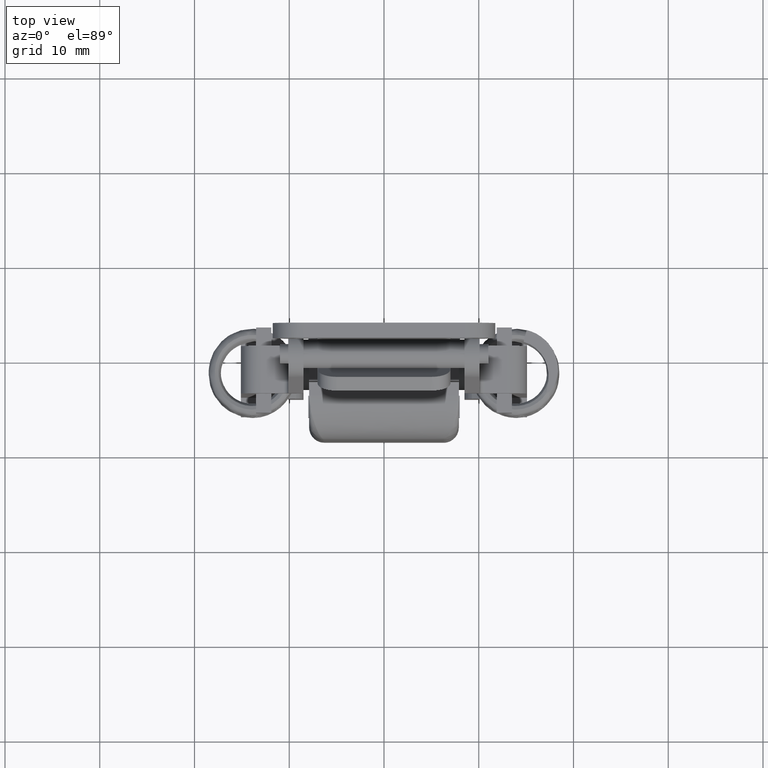
[diagram: clean part render]
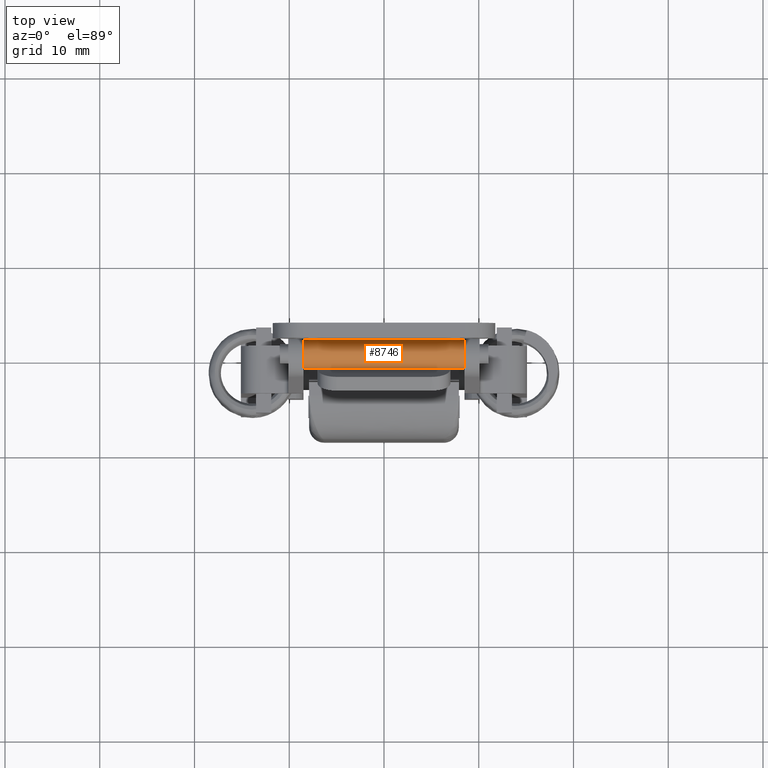
[diagram: same view with one face highlighted and labeled with its STEP entity id]
A machine part, top view. The second image highlights one B-rep face of the part: STEP entity #8746.
In plain terms, the highlighted face is a freeform B-spline surface patch.
Its self-contained STEP definition (entity closure, byte-faithful):
#8644=CARTESIAN_POINT('',(1.489514289545384,8.925000000000004,-0.177051351985123));
#8645=CARTESIAN_POINT('',(1.494581423172793,8.925000000000001,-0.134422092956955));
#8646=CARTESIAN_POINT('',(1.497202197632684,8.925000000000003,-0.091572809302278));
#8647=CARTESIAN_POINT('',(1.588775006934962,8.925000000000003,1.405629388330407));
#8648=CARTESIAN_POINT('',(0.091572809302278,8.925000000000003,1.497202197632685));
#8649=CARTESIAN_POINT('',(-1.405629388330406,8.925000000000003,1.588775006934964));
#8650=CARTESIAN_POINT('',(-1.497202197632684,8.925000000000003,0.091572809302279));
#8651=CARTESIAN_POINT('',(1.489514289545384,-8.935625000000004,-0.177051351985123));
#8652=CARTESIAN_POINT('',(1.494581423172793,-8.935625000000002,-0.134422092956955));
#8653=CARTESIAN_POINT('',(1.497202197632684,-8.935625000000002,-0.091572809302278));
#8654=CARTESIAN_POINT('',(1.588775006934962,-8.935625000000002,1.405629388330407));
#8655=CARTESIAN_POINT('',(0.091572809302278,-8.935625000000002,1.497202197632685));
#8656=CARTESIAN_POINT('',(-1.405629388330406,-8.935625000000002,1.588775006934964));
#8657=CARTESIAN_POINT('',(-1.497202197632684,-8.935625000000002,0.091572809302279));
#8665=(BOUNDED_SURFACE()B_SPLINE_SURFACE(2,1,((#8644,#8651),(#8645,#8652),(#8646,#8653),(#8647,#8654),(#8648,#8655),(#8649,#8656),(#8650,#8657)),.UNSPECIFIED.,.F.,.F.,.U.)B_SPLINE_SURFACE_WITH_KNOTS((3,2,2,3),(2,2),(3.078760800517997,3.141592653589793,4.712388980384690,6.283185307179586),(0.0,17.860625000000010),.UNSPECIFIED.)GEOMETRIC_REPRESENTATION_ITEM()RATIONAL_B_SPLINE_SURFACE(((0.977505800795127,0.977505800795127),(0.988284271247462,0.988284271247462),(1.0,1.0),(0.707106781186548,0.707106781186548),(1.0,1.0),(0.707106781186548,0.707106781186548),(1.0,1.0)))REPRESENTATION_ITEM('')SURFACE());
#8666=CARTESIAN_POINT('',(1.489514289542543,-8.500000000000000,-0.177051352009030));
#8667=VERTEX_POINT('',#8666);
#8668=CARTESIAN_POINT('',(0.0,-8.500000000000000,1.499999999999885));
#8669=VERTEX_POINT('',#8668);
#8670=CARTESIAN_POINT('',(1.489514289542543,-8.500000000000000,-0.177051352009030));
#8671=CARTESIAN_POINT('',(1.499999999999884,-8.500000000000000,-0.088836179502017));
#8672=CARTESIAN_POINT('',(1.499999999999884,-8.500000000000000,7.959941E-016));
#8673=CARTESIAN_POINT('',(1.499999999999884,-8.500000000000002,1.499999999999885));
#8674=CARTESIAN_POINT('',(0.0,-8.500000000000000,1.499999999999885));
#8682=(BOUNDED_CURVE()B_SPLINE_CURVE(2,(#8670,#8671,#8672,#8673,#8674),.UNSPECIFIED.,.F.,.U.)B_SPLINE_CURVE_WITH_KNOTS((3,2,3),(0.229562473510219,0.250000000000000,0.500000000000000),.UNSPECIFIED.)CURVE()GEOMETRIC_REPRESENTATION_ITEM()RATIONAL_B_SPLINE_CURVE((0.956026754177252,0.976055948327291,1.0,0.707106781186548,1.0))REPRESENTATION_ITEM(''));
#8683=EDGE_CURVE('',#8667,#8669,#8682,.T.);
#8684=ORIENTED_EDGE('',*,*,#8683,.F.);
#8685=CARTESIAN_POINT('',(1.489514289542543,8.500000000000000,-0.177051352009030));
#8686=VERTEX_POINT('',#8685);
#8687=CARTESIAN_POINT('',(1.489514289542543,8.500000000000000,-0.177051352009030));
#8688=CARTESIAN_POINT('',(1.489514289542543,-8.500000000000000,-0.177051352009030));
#8689=QUASI_UNIFORM_CURVE('',1,(#8687,#8688),.UNSPECIFIED.,.F.,.U.);
#8690=EDGE_CURVE('',#8686,#8667,#8689,.T.);
#8691=ORIENTED_EDGE('',*,*,#8690,.F.);
#8692=CARTESIAN_POINT('',(0.0,8.500000000000000,1.499999999999885));
#8693=VERTEX_POINT('',#8692);
#8694=CARTESIAN_POINT('',(1.489514289542543,8.500000000000000,-0.177051352009030));
#8695=CARTESIAN_POINT('',(1.499999999999884,8.500000000000000,-0.088836179502017));
#8696=CARTESIAN_POINT('',(1.499999999999884,8.500000000000000,7.959941E-016));
#8697=CARTESIAN_POINT('',(1.499999999999884,8.500000000000002,1.499999999999885));
#8698=CARTESIAN_POINT('',(0.0,8.500000000000000,1.499999999999885));
#8706=(BOUNDED_CURVE()B_SPLINE_CURVE(2,(#8694,#8695,#8696,#8697,#8698),.UNSPECIFIED.,.F.,.U.)B_SPLINE_CURVE_WITH_KNOTS((3,2,3),(0.229562473510219,0.250000000000000,0.500000000000000),.UNSPECIFIED.)CURVE()GEOMETRIC_REPRESENTATION_ITEM()RATIONAL_B_SPLINE_CURVE((0.956026754177252,0.976055948327291,1.0,0.707106781186548,1.0))REPRESENTATION_ITEM(''));
#8707=EDGE_CURVE('',#8686,#8693,#8706,.T.);
#8708=ORIENTED_EDGE('',*,*,#8707,.T.);
#8709=CARTESIAN_POINT('',(-1.497202197613752,8.500000000000000,0.091572809611825));
#8710=VERTEX_POINT('',#8709);
#8711=CARTESIAN_POINT('',(0.0,8.500000000000000,1.499999999999885));
#8712=CARTESIAN_POINT('',(-1.411059099773865,8.500000000000002,1.499999999999885));
#8713=CARTESIAN_POINT('',(-1.497202197613752,8.500000000000000,0.091572809611825));
#8721=(BOUNDED_CURVE()B_SPLINE_CURVE(2,(#8711,#8712,#8713),.UNSPECIFIED.,.F.,.U.)B_SPLINE_CURVE_WITH_KNOTS((3,3),(0.500000000000000,0.739332962170620),.UNSPECIFIED.)CURVE()GEOMETRIC_REPRESENTATION_ITEM()RATIONAL_B_SPLINE_CURVE((1.0,0.719603993366756,0.976072041520288))REPRESENTATION_ITEM(''));
#8722=EDGE_CURVE('',#8693,#8710,#8721,.T.);
#8723=ORIENTED_EDGE('',*,*,#8722,.T.);
#8724=CARTESIAN_POINT('',(-1.497202197613752,-8.500000000000000,0.091572809611825));
#8725=VERTEX_POINT('',#8724);
#8726=CARTESIAN_POINT('',(-1.497202197613752,8.500000000000000,0.091572809611825));
#8727=CARTESIAN_POINT('',(-1.497202197613752,-8.500000000000000,0.091572809611825));
#8728=QUASI_UNIFORM_CURVE('',1,(#8726,#8727),.UNSPECIFIED.,.F.,.U.);
#8729=EDGE_CURVE('',#8710,#8725,#8728,.T.);
#8730=ORIENTED_EDGE('',*,*,#8729,.T.);
#8731=CARTESIAN_POINT('',(0.0,-8.500000000000000,1.499999999999885));
#8732=CARTESIAN_POINT('',(-1.411059099773865,-8.500000000000002,1.499999999999885));
#8733=CARTESIAN_POINT('',(-1.497202197613752,-8.500000000000000,0.091572809611825));
#8741=(BOUNDED_CURVE()B_SPLINE_CURVE(2,(#8731,#8732,#8733),.UNSPECIFIED.,.F.,.U.)B_SPLINE_CURVE_WITH_KNOTS((3,3),(0.500000000000000,0.739332962170620),.UNSPECIFIED.)CURVE()GEOMETRIC_REPRESENTATION_ITEM()RATIONAL_B_SPLINE_CURVE((1.0,0.719603993366756,0.976072041520288))REPRESENTATION_ITEM(''));
#8742=EDGE_CURVE('',#8669,#8725,#8741,.T.);
#8743=ORIENTED_EDGE('',*,*,#8742,.F.);
#8744=EDGE_LOOP('',(#8684,#8691,#8708,#8723,#8730,#8743));
#8745=FACE_OUTER_BOUND('',#8744,.T.);
#8746=ADVANCED_FACE('',(#8745),#8665,.T.);